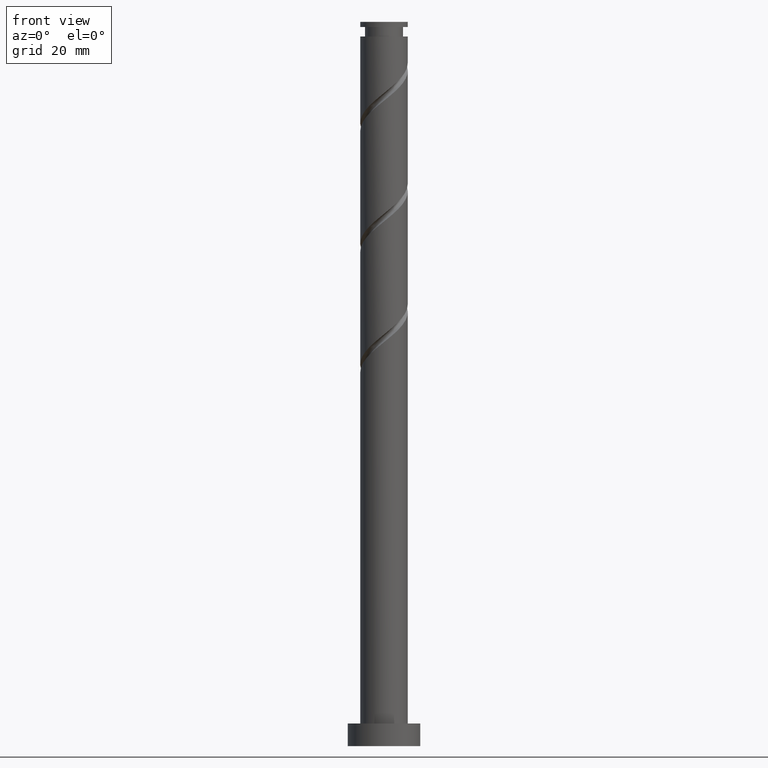
[diagram: clean part render]
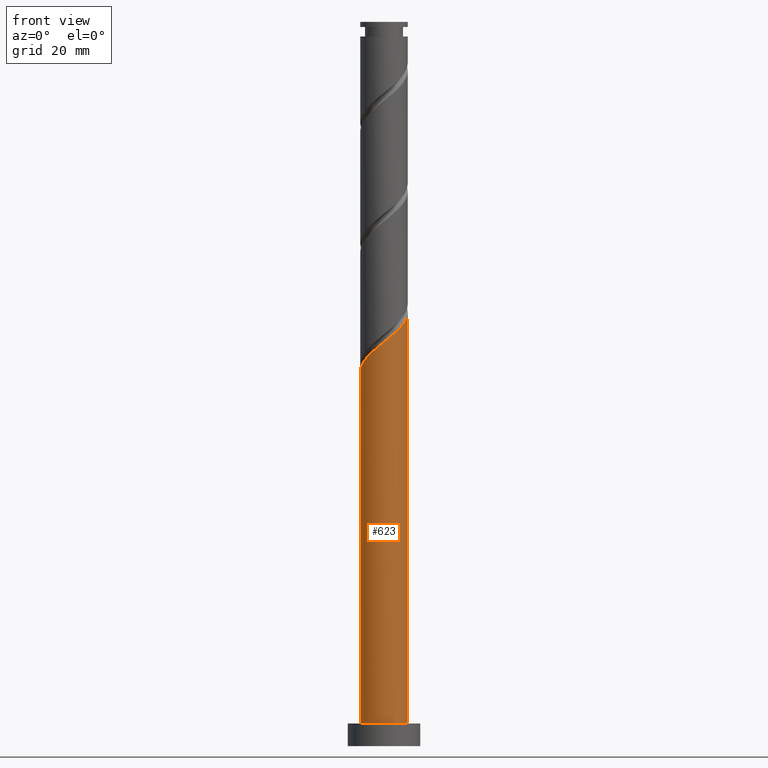
[diagram: same view with one face highlighted and labeled with its STEP entity id]
A machine part, front view. The second image highlights one B-rep face of the part: STEP entity #623.
In plain terms, the highlighted cylindrical surface (edge-blend (fillet) strip) has radius 5.25 mm, axis along (-0, -0, -1).
Its self-contained STEP definition (entity closure, byte-faithful):
#8 = VERTEX_POINT ( 'NONE', #584 ) ;
#33 = LINE ( 'NONE', #1553, #456 ) ;
#61 = CARTESIAN_POINT ( 'NONE',  ( -5.197907200538203654, -1.055480074241133437, 83.43602335984012086 ) ) ;
#136 = VERTEX_POINT ( 'NONE', #1111 ) ;
#137 = CYLINDRICAL_SURFACE ( 'NONE', #586, 5.250000000000000000 ) ;
#198 = CARTESIAN_POINT ( 'NONE',  ( -4.689992336405471640, -2.477145400856581858, 84.64814457196132480 ) ) ;
#203 = CARTESIAN_POINT ( 'NONE',  ( 4.943393405927220208, -1.922274456669039289, 94.34511426893102737 ) ) ;
#216 = CARTESIAN_POINT ( 'NONE',  ( -3.802122185635577356, -3.698127139245582118, 85.86026578408254295 ) ) ;
#248 = EDGE_CURVE ( 'NONE', #1467, #136, #731, .T. ) ;
#267 = AXIS2_PLACEMENT_3D ( 'NONE', #929, #540, #1079 ) ;
#305 = CARTESIAN_POINT ( 'NONE',  ( 5.250000000000007994, 3.664421072356622063E-15, 95.91990221387257520 ) ) ;
#318 = CARTESIAN_POINT ( 'NONE',  ( 5.114055971177482895, -1.186984213738335292, 94.95117487499162223 ) ) ;
#325 = CARTESIAN_POINT ( 'NONE',  ( 1.784476131566091084, -4.994789523933706121, 90.70875063256741555 ) ) ;
#341 = CARTESIAN_POINT ( 'NONE',  ( -1.199190241305278848, -5.166644967257297161, 88.28450820832496504 ) ) ;
#439 = ORIENTED_EDGE ( 'NONE', *, *, #1602, .F. ) ;
#450 = CARTESIAN_POINT ( 'NONE',  ( 3.119387133283074487, -4.289720429729070972, 91.92087184468859107 ) ) ;
#456 = VECTOR ( 'NONE', #1301, 1000.000000000000000 ) ;
#481 = CARTESIAN_POINT ( 'NONE',  ( -4.246057261020524720, -3.087636270051081766, 85.25420517802194809 ) ) ;
#520 = CARTESIAN_POINT ( 'NONE',  ( 0.000000000000000000, 0.000000000000000000, 160.0000000000000000 ) ) ;
#540 = DIRECTION ( 'NONE',  ( 0.000000000000000000, 0.000000000000000000, 1.000000000000000000 ) ) ;
#573 = CARTESIAN_POINT ( 'NONE',  ( -3.204174446556184996, -4.158817874833717454, 86.46632639014315203 ) ) ;
#584 = CARTESIAN_POINT ( 'NONE',  ( 5.250000000000000000, 6.429395695523604153E-16, 5.000000000000000000 ) ) ;
#586 = AXIS2_PLACEMENT_3D ( 'NONE', #520, #770, #1274 ) ;
#623 = ADVANCED_FACE ( 'NONE', ( #895 ), #137, .T. ) ;
#731 = LINE ( 'NONE', #1507, #1656 ) ;
#770 = DIRECTION ( 'NONE',  ( -0.000000000000000000, -0.000000000000000000, -1.000000000000000000 ) ) ;
#812 = VERTEX_POINT ( 'NONE', #305 ) ;
#826 = CARTESIAN_POINT ( 'NONE',  ( 5.250000000000007994, 3.664421072356622063E-15, 95.91990221387256099 ) ) ;
#861 = ORIENTED_EDGE ( 'NONE', *, *, #248, .T. ) ;
#888 = EDGE_CURVE ( 'NONE', #136, #8, #1433, .T. ) ;
#895 = FACE_OUTER_BOUND ( 'NONE', #981, .T. ) ;
#910 = CARTESIAN_POINT ( 'NONE',  ( -5.250000000000007994, -3.873816562205571602E-15, 82.58656888053923240 ) ) ;
#929 = CARTESIAN_POINT ( 'NONE',  ( 0.000000000000000000, 0.000000000000000000, 5.000000000000000000 ) ) ;
#955 = CARTESIAN_POINT ( 'NONE',  ( 3.660485537227071706, -3.763422063993290934, 92.52693245074922856 ) ) ;
#977 = CARTESIAN_POINT ( 'NONE',  ( -4.943949768471838091, -1.766312737548857426, 84.04208396590075836 ) ) ;
#981 = EDGE_LOOP ( 'NONE', ( #1556, #439, #861, #1448 ) ) ;
#985 = CARTESIAN_POINT ( 'NONE',  ( 1.044736808961952201, -5.145000000000006679, 90.10269002650676384 ) ) ;
#991 = EDGE_CURVE ( 'NONE', #812, #8, #33, .T. ) ;
#1077 = CARTESIAN_POINT ( 'NONE',  ( -5.250000000000007994, -0.1510715142500685393, 82.70866688525745758 ) ) ;
#1079 = DIRECTION ( 'NONE',  ( 1.000000000000000000, 0.000000000000000000, 0.000000000000000000 ) ) ;
#1094 = CARTESIAN_POINT ( 'NONE',  ( -5.250000000000007994, -3.873816562205571602E-15, 82.58656888053923240 ) ) ;
#1101 = CARTESIAN_POINT ( 'NONE',  ( -5.241312868482974174, -0.3018930517167516814, 82.82996275377948336 ) ) ;
#1111 = CARTESIAN_POINT ( 'NONE',  ( -5.250000000000000000, 0.000000000000000000, 5.000000000000000000 ) ) ;
#1188 =( BOUNDED_CURVE ( )  B_SPLINE_CURVE ( 2, ( #1094, #1077, #1101, #61, #977, #198, #481, #216, #573, #1470, #1484, #341, #1230, #1601, #985, #325, #1584, #450, #955, #1463, #1332, #203, #318, #1211, #826 ),
 .UNSPECIFIED., .F., .T. ) 
 B_SPLINE_CURVE_WITH_KNOTS ( ( 3, 2, 2, 2, 2, 2, 2, 2, 2, 2, 2, 2, 3 ),
 ( 0.05452521624175130782, 0.05681818181818176772, 0.06818181818181823228, 0.07954545454545458583, 0.09090909090909093937, 0.1022727272727272929, 0.1136363636363636465, 0.1250000000000000000, 0.1363636363636363535, 0.1477272727272727071, 0.1590909090909090606, 0.1704545454545454142, 0.1795252162417513009 ),
 .UNSPECIFIED. ) 
 CURVE ( )  GEOMETRIC_REPRESENTATION_ITEM ( )  RATIONAL_B_SPLINE_CURVE ( ( 0.9061101570135601246, 0.9072237824201423440, 0.9090909090909198298, 0.8998376744372221792, 0.9090909090909198298, 0.8998376744372221792, 0.9090909090909198298, 0.8998376744372221792, 0.9090909090909198298, 0.8998376744372221792, 0.9090909090909198298, 0.8998376744372221792, 0.9090909090909198298, 0.8998376744372221792, 0.9090909090909198298, 0.8998376744372221792, 0.9090909090909198298, 0.8998376744372221792, 0.9090909090909198298, 0.8998376744372221792, 0.9090909090909198298, 0.8998376744372221792, 0.9090909090909198298, 0.9017048011079996650, 0.9061101570135602357 ) ) 
 REPRESENTATION_ITEM ( '' )  );
#1211 = CARTESIAN_POINT ( 'NONE',  ( 5.250000000000007994, -0.6012768687718955674, 95.43394226090126153 ) ) ;
#1230 = CARTESIAN_POINT ( 'NONE',  ( -0.4470963774737324314, -5.230927721661803531, 88.89056881438558833 ) ) ;
#1274 = DIRECTION ( 'NONE',  ( -1.000000000000000000, 0.000000000000000000, 0.000000000000000000 ) ) ;
#1301 = DIRECTION ( 'NONE',  ( -0.000000000000000000, -0.000000000000000000, -1.000000000000000000 ) ) ;
#1332 = CARTESIAN_POINT ( 'NONE',  ( 4.572488673549144345, -2.579699077463275980, 93.73905366287044671 ) ) ;
#1389 = DIRECTION ( 'NONE',  ( -0.000000000000000000, -0.000000000000000000, -1.000000000000000000 ) ) ;
#1433 = CIRCLE ( 'NONE', #267, 5.250000000000000000 ) ;
#1448 = ORIENTED_EDGE ( 'NONE', *, *, #888, .T. ) ;
#1463 = CARTESIAN_POINT ( 'NONE',  ( 4.201583941171067593, -3.237123698257508675, 93.13299305680982343 ) ) ;
#1467 = VERTEX_POINT ( 'NONE', #910 ) ;
#1470 = CARTESIAN_POINT ( 'NONE',  ( -2.606226707476793969, -4.619508610421854122, 87.07238699620371847 ) ) ;
#1484 = CARTESIAN_POINT ( 'NONE',  ( -1.902708474391036964, -4.893076788839576530, 87.67844760226435596 ) ) ;
#1507 = CARTESIAN_POINT ( 'NONE',  ( -5.250000000000000000, 0.000000000000000000, 160.0000000000000000 ) ) ;
#1553 = CARTESIAN_POINT ( 'NONE',  ( 5.250000000000000000, 6.429395695523604153E-16, 160.0000000000000000 ) ) ;
#1556 = ORIENTED_EDGE ( 'NONE', *, *, #991, .F. ) ;
#1584 = CARTESIAN_POINT ( 'NONE',  ( 2.451931632424582563, -4.642254976831389435, 91.31481123862798199 ) ) ;
#1601 = CARTESIAN_POINT ( 'NONE',  ( 0.3049974863578137629, -5.295210476066309013, 89.49662942044619740 ) ) ;
#1602 = EDGE_CURVE ( 'NONE', #1467, #812, #1188, .T. ) ;
#1656 = VECTOR ( 'NONE', #1389, 1000.000000000000000 ) ;